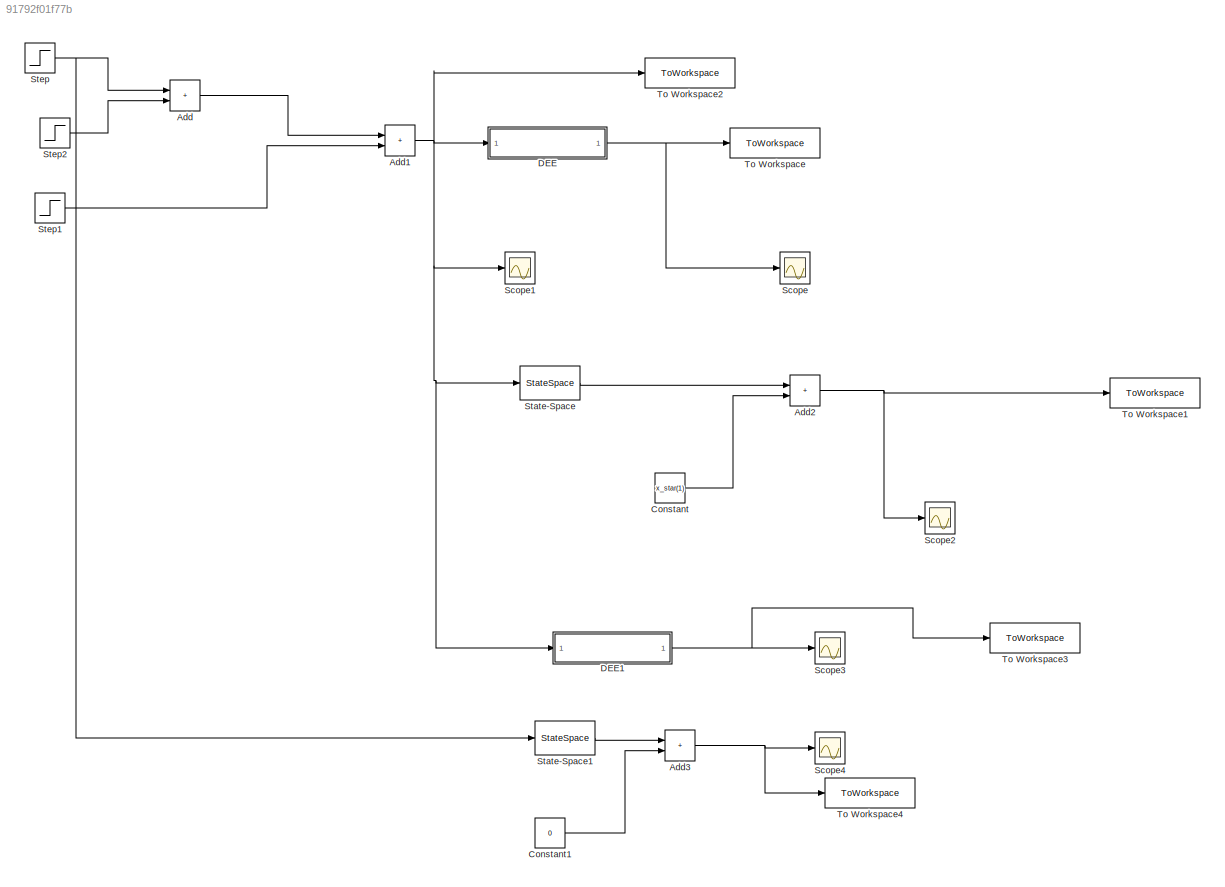
MODEL slx_91792f01f77b
KIND model
CONFIG AbsTol = auto
CONFIG EnableMultiTasking = off
CONFIG FixedStep = auto
CONFIG MaxStep = auto
CONFIG MinStep = auto
CONFIG RelTol = 1e-3
CONFIG SampleTimeConstraint = Unconstrained
CONFIG SolverName = VariableStepAuto
CONFIG StartTime = 0.0
CONFIG StopTime = 100
WORKSPACE source: MATLAB code (in-file)
WORKSPACE Kab = 12
WORKSPACE Kia = 10
WORKSPACE kba = 8
WORKSPACE Fb = 2
WORKSPACE kfb = 1
WORKSPACE I = 0.3
WORKSPACE Kba = 8
WORKSPACE code: x_star =[Fb/Kba;Kia*(Kba-Fb)*I/(Kab*Fb)];
BLOCK [Sum] Add
  IconShape = rectangular
  Ports = [2, 1]
BLOCK [Sum] Add1
  IconShape = rectangular
  Ports = [2, 1]
BLOCK [Sum] Add2
  IconShape = rectangular
  Ports = [2, 1]
BLOCK [Sum] Add3
  IconShape = rectangular
  Ports = [2, 1]
BLOCK [Constant] Constant
  Value = x_star(1)
BLOCK [Constant] Constant1
  Value = 0
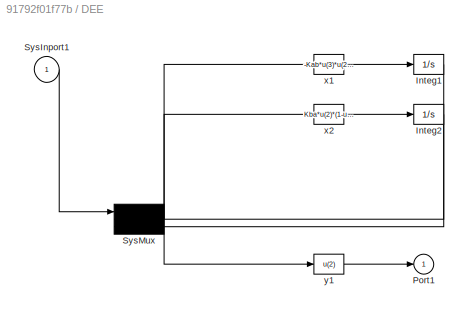
BLOCK [SubSystem] DEE
  OpenFcn = diffeqed
  Ports = [1, 1]
  RequestExecContextInheritance = off
BLOCK [Integrator] DEE/Integ1
  InitialCondition = x_star(1)
  Ports = [1, 1]
BLOCK [Integrator] DEE/Integ2
  InitialCondition = x_star(2)
  Ports = [1, 1]
BLOCK [Outport] DEE/Port1
BLOCK [Inport] DEE/SysInport1
BLOCK [Mux] DEE/SysMux
  Inputs = 3
  Ports = [3, 1]
BLOCK [Fcn] DEE/x1
  Expr = -Kab*u(3)*u(2)+10^7*u*(1-u(2))/(10^6+1-u(2))
BLOCK [Fcn] DEE/x2
  Expr = Kba*u(2)*(1-u(3))/(1.0000001-u(3))-Fb;
BLOCK [Fcn] DEE/y1
  Expr = u(2)
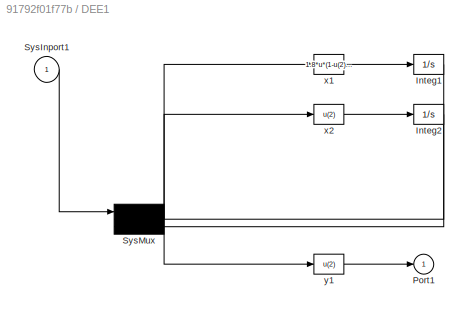
BLOCK [SubSystem] DEE1
  OpenFcn = diffeqed
  Ports = [1, 1]
  RequestExecContextInheritance = off
BLOCK [Integrator] DEE1/Integ1
  InitialCondition = 0;
  Ports = [1, 1]
BLOCK [Integrator] DEE1/Integ2
  Ports = [1, 1]
BLOCK [Outport] DEE1/Port1
BLOCK [Inport] DEE1/SysInport1
BLOCK [Mux] DEE1/SysMux
  Inputs = 3
  Ports = [3, 1]
BLOCK [Fcn] DEE1/x1
  Expr = 1.8*u*(1-u(2)-u(3))-u(2)
BLOCK [Fcn] DEE1/x2
  Expr = u(2)
BLOCK [Fcn] DEE1/y1
  Expr = u(2)
BLOCK [Scope] Scope
  Floating = off
  NumInputPorts = 1
  Ports = [1]
  ScopeSpecificationString = Simulink.scopes.TimeScopeBlockCfg('CurrentConfiguration', extmgr.ConfigurationSet(extmgr.Configuration('Core','General UI',true),extmgr.Configuration('Core','Source UI',true),extmgr.Configuration('Sources','WiredSimulink',true),extmgr.Configuration('Visuals','Time Domain',true,'SerializedDisplays',{struct('MinYLimReal','0.15678','MaxYLimReal','0.35366','YLabelReal','','MinYLimMag','0.15678','MaxYL...<+1350ch>
BLOCK [Scope] Scope1
  Floating = off
  NumInputPorts = 1
  Ports = [1]
  ScopeSpecificationString = Simulink.scopes.TimeScopeBlockCfg('CurrentConfiguration', extmgr.ConfigurationSet(extmgr.Configuration('Core','General UI',true),extmgr.Configuration('Core','Source UI',true),extmgr.Configuration('Sources','WiredSimulink',true,'DataLoggingVariableName','ScopeData1'),extmgr.Configuration('Visuals','Time Domain',true,'SerializedDisplays',{struct('MinYLimReal','0.275','MaxYLimReal','0.525','YLabelRea...<+1374ch>
BLOCK [Scope] Scope2
  Floating = off
  NumInputPorts = 1
  Ports = [1]
  ScopeSpecificationString = Simulink.scopes.TimeScopeBlockCfg('CurrentConfiguration', extmgr.ConfigurationSet(extmgr.Configuration('Core','General UI',true),extmgr.Configuration('Core','Source UI',true),extmgr.Configuration('Sources','WiredSimulink',true,'DataLoggingVariableName','ScopeData1'),extmgr.Configuration('Visuals','Time Domain',true,'SerializedDisplays',{struct('MinYLimReal','0.08003','MaxYLimReal','0.59807','YLabe...<+1390ch>
BLOCK [Scope] Scope3
  Floating = off
  NumInputPorts = 1
  Ports = [1]
  ScopeSpecificationString = Simulink.scopes.TimeScopeBlockCfg('CurrentConfiguration', extmgr.ConfigurationSet(extmgr.Configuration('Core','General UI',true),extmgr.Configuration('Core','Source UI',true),extmgr.Configuration('Sources','WiredSimulink',true,'DataLoggingVariableName','ScopeData2'),extmgr.Configuration('Visuals','Time Domain',true,'SerializedDisplays',{struct('MinYLimReal','-0.04358','MaxYLimReal','0.39226','YLab...<+1392ch>
BLOCK [Scope] Scope4
  Floating = off
  NumInputPorts = 1
  Ports = [1]
  ScopeSpecificationString = Simulink.scopes.TimeScopeBlockCfg('CurrentConfiguration', extmgr.ConfigurationSet(extmgr.Configuration('Core','General UI',true),extmgr.Configuration('Core','Source UI',true),extmgr.Configuration('Sources','WiredSimulink',true,'DataLoggingVariableName','ScopeData1'),extmgr.Configuration('Visuals','Time Domain',true,'SerializedDisplays',{struct('MinYLimReal','-0.0454','MaxYLimReal','0.4085','YLabel...<+1386ch>
BLOCK [StateSpace] State-Space
  A = [-9 -3;8 0]
  B = [7.5;0]
  C = [1 0]
  D = 0
  InitialCondition = 0
  Ports = [1, 1]
BLOCK [StateSpace] State-Space1
  A = [-1 -0.15*1.8; 1 0]
  B = [1;0]
  C = [1 0]
  D = 0
  InitialCondition = 0
  Ports = [1, 1]
BLOCK [Step] Step
  After = 0.5
  Before = 0.3
  SampleTime = 0
  Time = 0
BLOCK [Step] Step1
  After = -0.2
  SampleTime = 0
  Time = 10
BLOCK [Step] Step2
  After = 0.2
  SampleTime = 0
  Time = 18
BLOCK [ToWorkspace] To Workspace
  FixptAsFi = on
  MaxDataPoints = inf
  Ports = [1]
  SampleTime = -1
  VariableName = yk_non_lin
BLOCK [ToWorkspace] To Workspace1
  FixptAsFi = on
  MaxDataPoints = inf
  Ports = [1]
  SampleTime = -1
  VariableName = yk_lin
BLOCK [ToWorkspace] To Workspace2
  FixptAsFi = on
  MaxDataPoints = inf
  Ports = [1]
  SampleTime = -1
  VariableName = Input
BLOCK [ToWorkspace] To Workspace3
  FixptAsFi = on
  MaxDataPoints = inf
  Ports = [1]
  SampleTime = -1
  VariableName = yk_non_lin_Na
BLOCK [ToWorkspace] To Workspace4
  FixptAsFi = on
  MaxDataPoints = inf
  Ports = [1]
  SampleTime = -1
  VariableName = yk_lin_Na
NET Add1:1 -> DEE1:1, DEE:1, Scope1:1, State-Space:1, To Workspace2:1
NET Add2:1 -> Scope2:1, To Workspace1:1
NET Add3:1 -> Scope4:1, To Workspace4:1
LINE Add:1 -> Add1:1
LINE Constant1:1 -> Add3:2
LINE Constant:1 -> Add2:2
LINE DEE/Integ1:1 -> DEE/SysMux:2
LINE DEE/Integ2:1 -> DEE/SysMux:3
LINE DEE/SysInport1:1 -> DEE/SysMux:1
NET DEE/SysMux:1 -> DEE/x1:1, DEE/x2:1, DEE/y1:1
LINE DEE/x1:1 -> DEE/Integ1:1
LINE DEE/x2:1 -> DEE/Integ2:1
LINE DEE/y1:1 -> DEE/Port1:1
LINE DEE1/Integ1:1 -> DEE1/SysMux:2
LINE DEE1/Integ2:1 -> DEE1/SysMux:3
LINE DEE1/SysInport1:1 -> DEE1/SysMux:1
NET DEE1/SysMux:1 -> DEE1/x1:1, DEE1/x2:1, DEE1/y1:1
LINE DEE1/x1:1 -> DEE1/Integ1:1
LINE DEE1/x2:1 -> DEE1/Integ2:1
LINE DEE1/y1:1 -> DEE1/Port1:1
NET DEE1:1 -> Scope3:1, To Workspace3:1
NET DEE:1 -> Scope:1, To Workspace:1
LINE State-Space1:1 -> Add3:1
LINE State-Space:1 -> Add2:1
LINE Step1:1 -> Add1:2
LINE Step2:1 -> Add:2
NET Step:1 -> Add:1, State-Space1:1
note: NET lines group one-source signal fan-out (src -> all destinations, sorted); 1:1 wires keep LINE
